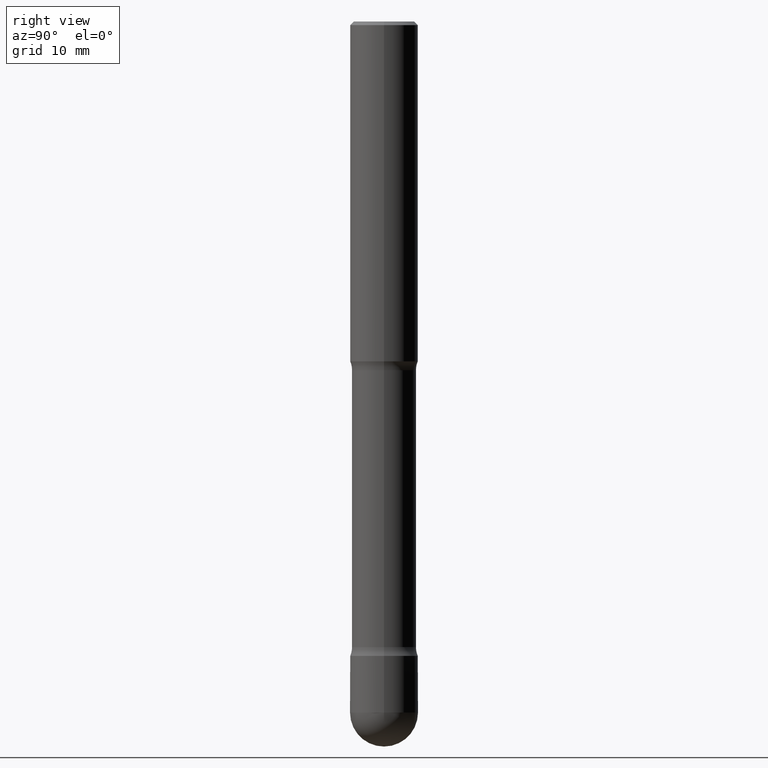
[diagram: clean part render]
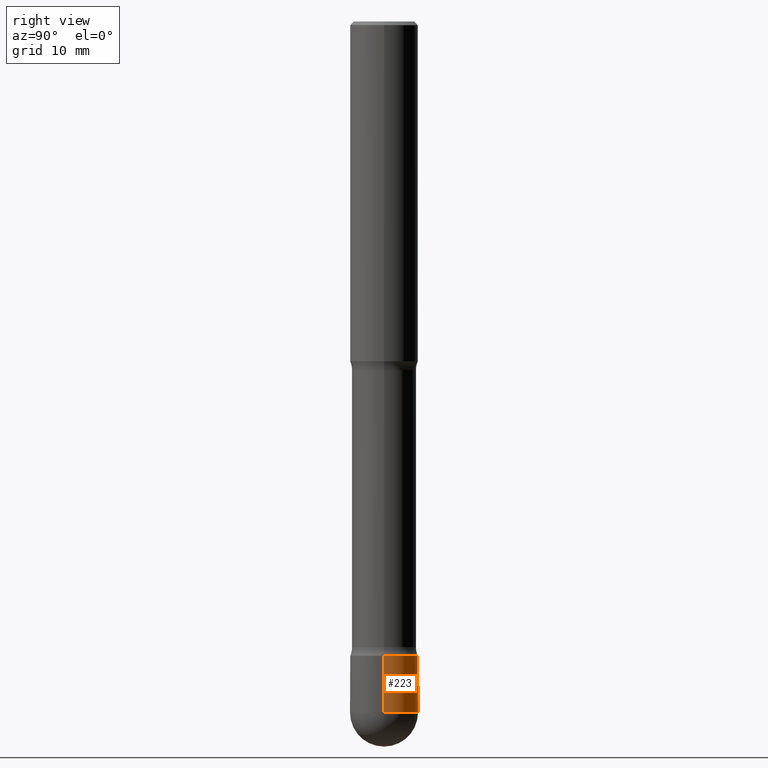
[diagram: same view with one face highlighted and labeled with its STEP entity id]
A machine part, right view. The second image highlights one B-rep face of the part: STEP entity #223.
In plain terms, the highlighted cylindrical surface (edge-blend (fillet) strip) has radius 4.7625 mm, axis along (-0, 0, 1).
Its self-contained STEP definition (entity closure, byte-faithful):
#2 = AXIS2_PLACEMENT_3D ( 'NONE', #349, #118, #465 ) ;
#14 = AXIS2_PLACEMENT_3D ( 'NONE', #229, #55, #232 ) ;
#22 = CARTESIAN_POINT ( 'NONE',  ( 0.1874999999999996392, -1.309305502066172642E-15, 9.142831454617361395E-30 ) ) ;
#30 = CIRCLE ( 'NONE', #39, 0.1874999999999996669 ) ;
#39 = AXIS2_PLACEMENT_3D ( 'NONE', #241, #452, #443 ) ;
#55 = DIRECTION ( 'NONE',  ( -2.445468806185136597E-29, 3.491481338843145583E-15, 1.000000000000000000 ) ) ;
#75 = DIRECTION ( 'NONE',  ( -2.445468806185136877E-29, 3.491481338843145188E-15, 1.000000000000000000 ) ) ;
#88 = ORIENTED_EDGE ( 'NONE', *, *, #404, .T. ) ;
#90 = ORIENTED_EDGE ( 'NONE', *, *, #147, .F. ) ;
#111 = LINE ( 'NONE', #22, #531 ) ;
#118 = DIRECTION ( 'NONE',  ( -2.445468806185136597E-29, 3.491481338843145583E-15, 1.000000000000000000 ) ) ;
#130 = ORIENTED_EDGE ( 'NONE', *, *, #522, .T. ) ;
#147 = EDGE_CURVE ( 'NONE', #346, #257, #111, .T. ) ;
#171 = CIRCLE ( 'NONE', #14, 0.1874999999999996669 ) ;
#197 = CARTESIAN_POINT ( 'NONE',  ( -0.1874999999999996392, 1.332267629550185285E-15, -9.223003294227931175E-30 ) ) ;
#211 = CARTESIAN_POINT ( 'NONE',  ( 1.309305502066266713E-15, 0.1874999999999864830, -3.812500000000000444 ) ) ;
#220 = CARTESIAN_POINT ( 'NONE',  ( 0.1874999999999996669, -1.407503414721142196E-14, -3.812500000000000000 ) ) ;
#223 = ADVANCED_FACE ( 'NONE', ( #264 ), #302, .T. ) ;
#229 = CARTESIAN_POINT ( 'NONE',  ( 9.323349823580833275E-29, -1.331127260433949088E-14, -3.812500000000000000 ) ) ;
#232 = DIRECTION ( 'NONE',  ( 1.000000000000000000, -6.982962677686265133E-15, 0.000000000000000000 ) ) ;
#241 = CARTESIAN_POINT ( 'NONE',  ( 9.323349823580833275E-29, -1.331127260433949088E-14, -3.812500000000000000 ) ) ;
#246 = AXIS2_PLACEMENT_3D ( 'NONE', #297, #347, #508 ) ;
#257 = VERTEX_POINT ( 'NONE', #466 ) ;
#264 = FACE_OUTER_BOUND ( 'NONE', #509, .T. ) ;
#270 = CARTESIAN_POINT ( 'NONE',  ( -0.1874999999999996669, -1.143346101559506542E-14, -3.812500000000000000 ) ) ;
#280 = VERTEX_POINT ( 'NONE', #425 ) ;
#297 = CARTESIAN_POINT ( 'NONE',  ( 0.000000000000000000, 0.000000000000000000, 0.000000000000000000 ) ) ;
#302 = CYLINDRICAL_SURFACE ( 'NONE', #246, 0.1874999999999996392 ) ;
#303 = ORIENTED_EDGE ( 'NONE', *, *, #463, .T. ) ;
#311 = CIRCLE ( 'NONE', #2, 0.1874999999999996392 ) ;
#313 = VERTEX_POINT ( 'NONE', #211 ) ;
#346 = VERTEX_POINT ( 'NONE', #220 ) ;
#347 = DIRECTION ( 'NONE',  ( -2.445468806185136597E-29, 3.491481338843145583E-15, 1.000000000000000000 ) ) ;
#349 = CARTESIAN_POINT ( 'NONE',  ( 8.559140821647976968E-29, -1.222018468595100934E-14, -3.500000000000000000 ) ) ;
#361 = EDGE_CURVE ( 'NONE', #257, #280, #311, .T. ) ;
#404 = EDGE_CURVE ( 'NONE', #346, #313, #30, .T. ) ;
#425 = CARTESIAN_POINT ( 'NONE',  ( -0.1874999999999996392, -1.143346101559506542E-14, -3.500000000000000000 ) ) ;
#441 = ORIENTED_EDGE ( 'NONE', *, *, #361, .F. ) ;
#443 = DIRECTION ( 'NONE',  ( 1.000000000000000000, -6.982962677686265133E-15, 0.000000000000000000 ) ) ;
#452 = DIRECTION ( 'NONE',  ( -2.445468806185136597E-29, 3.491481338843145583E-15, 1.000000000000000000 ) ) ;
#463 = EDGE_CURVE ( 'NONE', #313, #554, #171, .T. ) ;
#465 = DIRECTION ( 'NONE',  ( 1.000000000000000000, -6.982962677686266711E-15, 0.000000000000000000 ) ) ;
#466 = CARTESIAN_POINT ( 'NONE',  ( 0.1874999999999996392, -1.352949018801718119E-14, -3.500000000000000000 ) ) ;
#476 = VECTOR ( 'NONE', #482, 39.37007874015748143 ) ;
#482 = DIRECTION ( 'NONE',  ( -2.445468806185136877E-29, 3.491481338843145188E-15, 1.000000000000000000 ) ) ;
#508 = DIRECTION ( 'NONE',  ( 1.000000000000000000, -6.982962677686267499E-15, 4.876176775795935232E-29 ) ) ;
#509 = EDGE_LOOP ( 'NONE', ( #303, #130, #441, #90, #88 ) ) ;
#522 = EDGE_CURVE ( 'NONE', #554, #280, #533, .T. ) ;
#531 = VECTOR ( 'NONE', #75, 39.37007874015748143 ) ;
#533 = LINE ( 'NONE', #197, #476 ) ;
#554 = VERTEX_POINT ( 'NONE', #270 ) ;